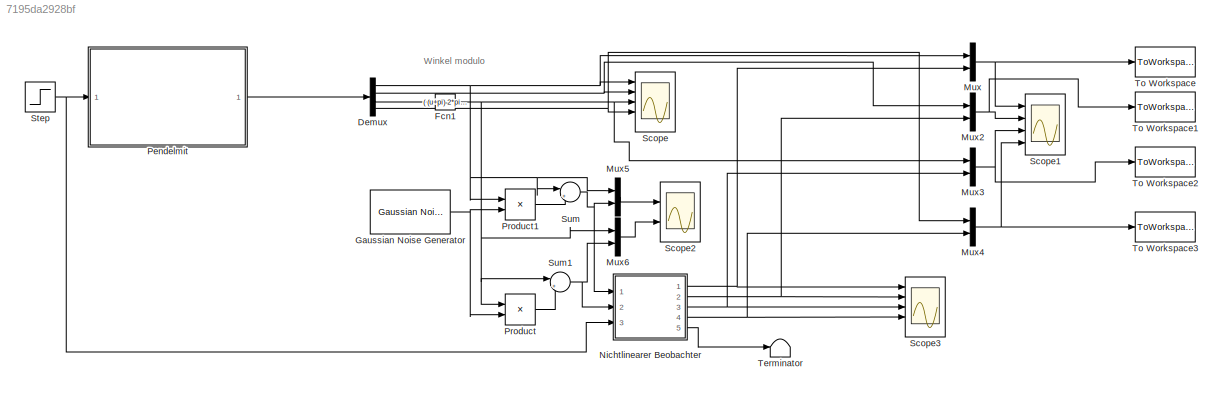
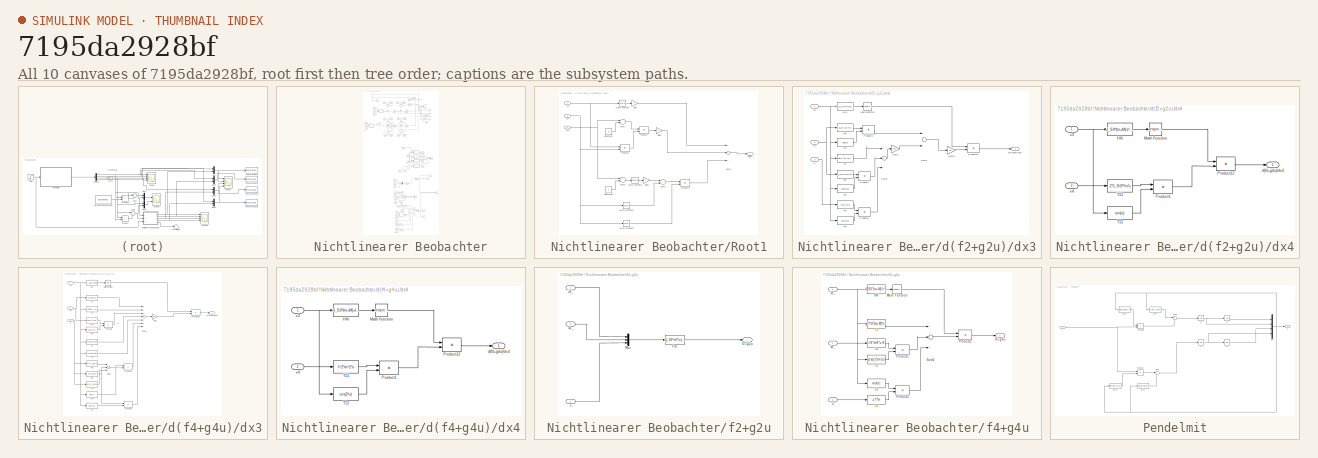
[diagram: thumbnail index - all 10 canvases of the model, root first then tree order]
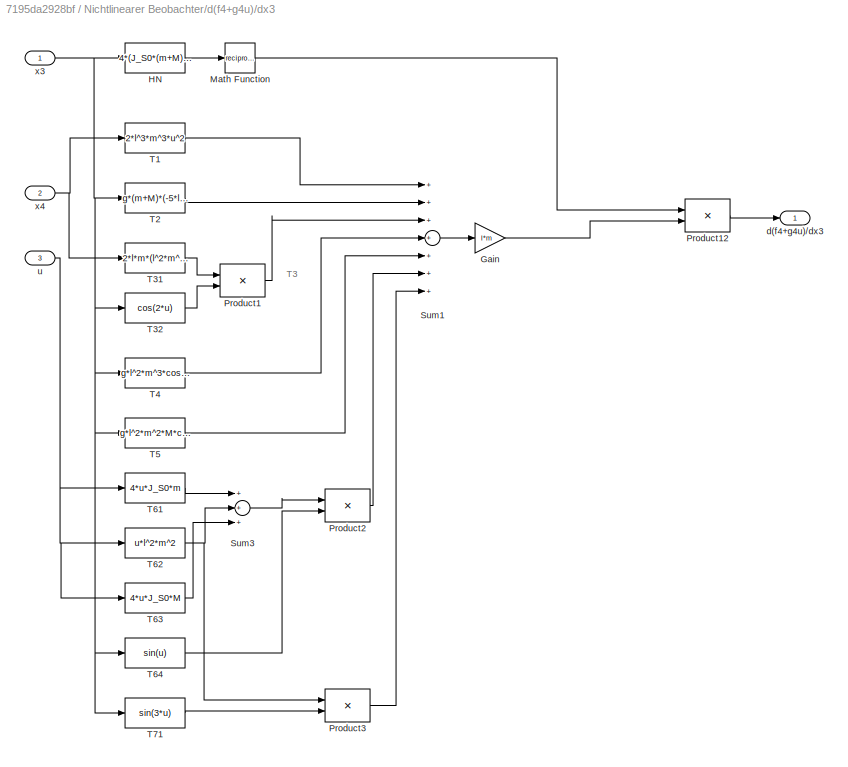
MODEL slx_7195da2928bf
KIND model
BLOCK [Demux] Demux
  Ports = [1, 4]
BLOCK [Fcn] Fcn1
  Expr = ( (u+pi)-2*pi*floor((u+pi)/(2*pi)) -pi)
BLOCK [Reference] Gaussian Noise Generator  REF=commnoisgen2/Gaussian Noise
Generator
  Ports = [0, 1]
  SourceBlock = commnoisgen2/Gaussian Noise\nGenerator
  SourceType = Gaussian Noise Generator
  Ts = 1e-3
  d = 0.0008
  frameBased = off
  m = 0
  orient = off
  outDataType = double
  s = 0
  sampPerFrame = 1
BLOCK [Mux] Mux
  DisplayOption = bar
  Inputs = 2
  Ports = [2, 1]
BLOCK [Mux] Mux2
  DisplayOption = bar
  Inputs = 2
  Ports = [2, 1]
BLOCK [Mux] Mux3
  DisplayOption = bar
  Inputs = 2
  Ports = [2, 1]
BLOCK [Mux] Mux4
  DisplayOption = bar
  Inputs = 2
  Ports = [2, 1]
BLOCK [Mux] Mux5
  DisplayOption = bar
  Inputs = 2
  Ports = [2, 1]
BLOCK [Mux] Mux6
  DisplayOption = bar
  Inputs = 2
  Ports = [2, 1]
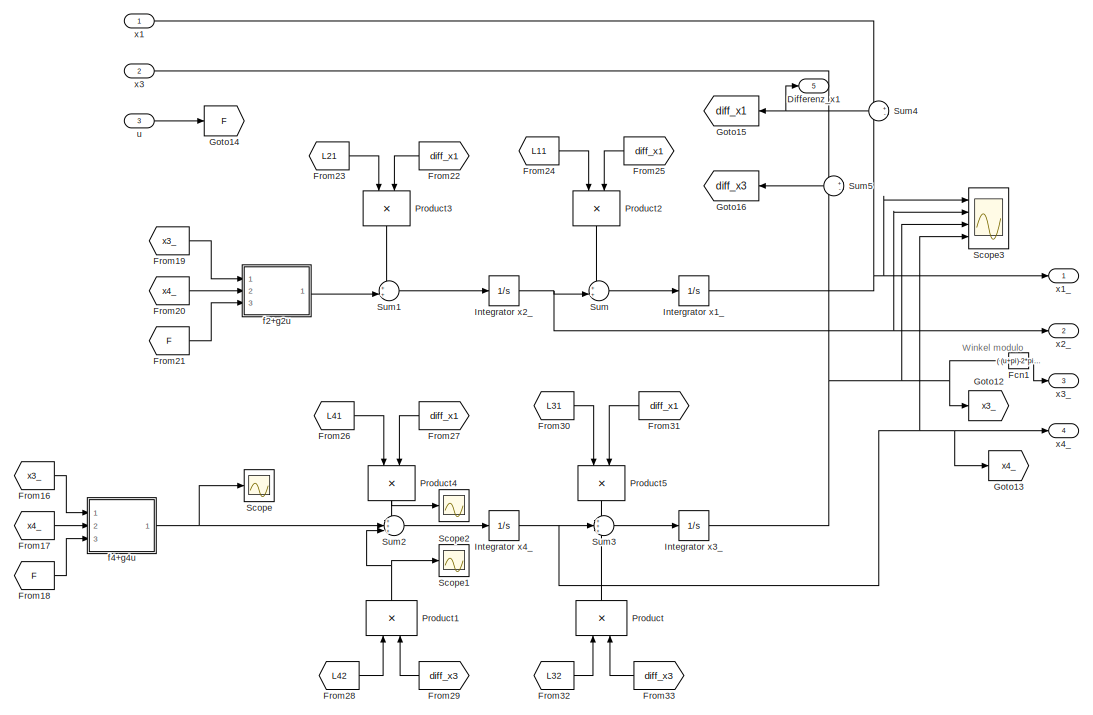
[diagram: Nichtlinearer Beobachter - part 1/2, full width, top band]
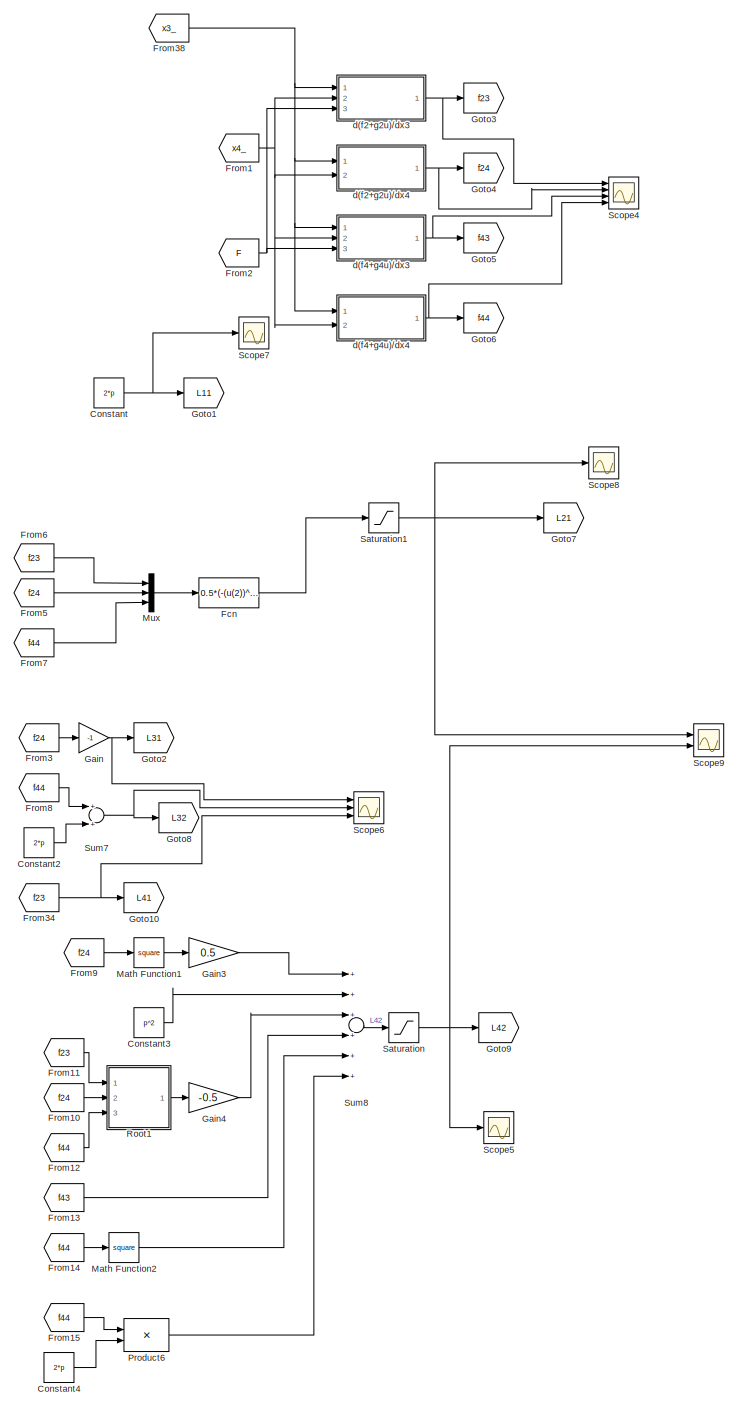
[diagram: Nichtlinearer Beobachter - part 2/2, bottom right region]
BLOCK [SubSystem] Nichtlinearer Beobachter
  FunctionWithSeparateData = off
  MaskHideContents = off
  MinAlgLoopOccurrences = off
  Opaque = off
  Ports = [3, 5]
  PropExecContextOutsideSubsystem = off
  RTWSystemCode = Auto
  RequestExecContextInheritance = off
BLOCK [Constant] Nichtlinearer Beobachter/Constant
  Value = 2*p
BLOCK [Constant] Nichtlinearer Beobachter/Constant2
  Value = 2*p
BLOCK [Constant] Nichtlinearer Beobachter/Constant3
  Value = p^2
BLOCK [Constant] Nichtlinearer Beobachter/Constant4
  Value = 2*p
BLOCK [Outport] Nichtlinearer Beobachter/Differenz_x1
  IconDisplay = Port number
  Port = 5
BLOCK [Fcn] Nichtlinearer Beobachter/Fcn
  Expr = 0.5*(-(u(2))^2+2*p^2+sqrt(4*u(1)^2+8*u(1)*u(2)*(u(3)+p)+u(2)^2*(u(2)^2+4*(u(3)+p)^2)))
BLOCK [Fcn] Nichtlinearer Beobachter/Fcn1
  Expr = ( (u+pi)-2*pi*floor((u+pi)/(2*pi)) -pi)
BLOCK [From] Nichtlinearer Beobachter/From1
  GotoTag = x4_
BLOCK [From] Nichtlinearer Beobachter/From10
  GotoTag = f24
BLOCK [From] Nichtlinearer Beobachter/From11
  GotoTag = f23
BLOCK [From] Nichtlinearer Beobachter/From12
  GotoTag = f44
BLOCK [From] Nichtlinearer Beobachter/From13
  GotoTag = f43
BLOCK [From] Nichtlinearer Beobachter/From14
  GotoTag = f44
BLOCK [From] Nichtlinearer Beobachter/From15
  GotoTag = f44
BLOCK [From] Nichtlinearer Beobachter/From16
  GotoTag = x3_
BLOCK [From] Nichtlinearer Beobachter/From17
  GotoTag = x4_
BLOCK [From] Nichtlinearer Beobachter/From18
  GotoTag = F
BLOCK [From] Nichtlinearer Beobachter/From19
  GotoTag = x3_
BLOCK [From] Nichtlinearer Beobachter/From2
  GotoTag = F
BLOCK [From] Nichtlinearer Beobachter/From20
  GotoTag = x4_
BLOCK [From] Nichtlinearer Beobachter/From21
  GotoTag = F
BLOCK [From] Nichtlinearer Beobachter/From22
  GotoTag = diff_x1
BLOCK [From] Nichtlinearer Beobachter/From23
  GotoTag = L21
BLOCK [From] Nichtlinearer Beobachter/From24
  GotoTag = L11
BLOCK [From] Nichtlinearer Beobachter/From25
  GotoTag = diff_x1
BLOCK [From] Nichtlinearer Beobachter/From26
  GotoTag = L41
BLOCK [From] Nichtlinearer Beobachter/From27
  GotoTag = diff_x1
BLOCK [From] Nichtlinearer Beobachter/From28
  GotoTag = L42
BLOCK [From] Nichtlinearer Beobachter/From29
  GotoTag = diff_x3
BLOCK [From] Nichtlinearer Beobachter/From3
  GotoTag = f24
BLOCK [From] Nichtlinearer Beobachter/From30
  GotoTag = L31
BLOCK [From] Nichtlinearer Beobachter/From31
  GotoTag = diff_x1
BLOCK [From] Nichtlinearer Beobachter/From32
  GotoTag = L32
BLOCK [From] Nichtlinearer Beobachter/From33
  GotoTag = diff_x3
BLOCK [From] Nichtlinearer Beobachter/From34
  GotoTag = f23
BLOCK [From] Nichtlinearer Beobachter/From38
  GotoTag = x3_
BLOCK [From] Nichtlinearer Beobachter/From5
  GotoTag = f24
BLOCK [From] Nichtlinearer Beobachter/From6
  GotoTag = f23
BLOCK [From] Nichtlinearer Beobachter/From7
  GotoTag = f44
BLOCK [From] Nichtlinearer Beobachter/From8
  GotoTag = f44
BLOCK [From] Nichtlinearer Beobachter/From9
  GotoTag = f24
BLOCK [Gain] Nichtlinearer Beobachter/Gain
  Gain = -1
  OutDataTypeStr = Inherit: Inherit via internal rule
  ParamDataTypeStr = Inherit: Inherit via internal rule
  SaturateOnIntegerOverflow = off
BLOCK [Gain] Nichtlinearer Beobachter/Gain3
  Gain = 0.5
  OutDataTypeStr = Inherit: Inherit via internal rule
  ParamDataTypeStr = Inherit: Inherit via internal rule
  SaturateOnIntegerOverflow = off
BLOCK [Gain] Nichtlinearer Beobachter/Gain4
  Gain = -0.5
  OutDataTypeStr = Inherit: Inherit via internal rule
  ParamDataTypeStr = Inherit: Inherit via internal rule
  SaturateOnIntegerOverflow = off
BLOCK [Goto] Nichtlinearer Beobachter/Goto1
  GotoTag = L11
BLOCK [Goto] Nichtlinearer Beobachter/Goto10
  GotoTag = L41
BLOCK [Goto] Nichtlinearer Beobachter/Goto12
  GotoTag = x3_
BLOCK [Goto] Nichtlinearer Beobachter/Goto13
  GotoTag = x4_
BLOCK [Goto] Nichtlinearer Beobachter/Goto14
  GotoTag = F
BLOCK [Goto] Nichtlinearer Beobachter/Goto15
  GotoTag = diff_x1
BLOCK [Goto] Nichtlinearer Beobachter/Goto16
  GotoTag = diff_x3
BLOCK [Goto] Nichtlinearer Beobachter/Goto2
  GotoTag = L31
BLOCK [Goto] Nichtlinearer Beobachter/Goto3
  GotoTag = f23
BLOCK [Goto] Nichtlinearer Beobachter/Goto4
  GotoTag = f24
BLOCK [Goto] Nichtlinearer Beobachter/Goto5
  GotoTag = f43
BLOCK [Goto] Nichtlinearer Beobachter/Goto6
  GotoTag = f44
BLOCK [Goto] Nichtlinearer Beobachter/Goto7
  GotoTag = L21
BLOCK [Goto] Nichtlinearer Beobachter/Goto8
  GotoTag = L32
BLOCK [Goto] Nichtlinearer Beobachter/Goto9
  GotoTag = L42
BLOCK [Integrator] Nichtlinearer Beobachter/Integrator x2_
  Ports = [1, 1]
BLOCK [Integrator] Nichtlinearer Beobachter/Integrator x3_
  InitialCondition = x3
  Ports = [1, 1]
BLOCK [Integrator] Nichtlinearer Beobachter/Integrator x4_
  Ports = [1, 1]
BLOCK [Integrator] Nichtlinearer Beobachter/Intergrator x1_
  Ports = [1, 1]
BLOCK [Math] Nichtlinearer Beobachter/Math Function1
  Operator = square
  Ports = [1, 1]
BLOCK [Math] Nichtlinearer Beobachter/Math Function2
  Operator = square
  Ports = [1, 1]
BLOCK [Mux] Nichtlinearer Beobachter/Mux
  DisplayOption = bar
  Inputs = 3
  Ports = [3, 1]
BLOCK [Product] Nichtlinearer Beobachter/Product
  Ports = [2, 1]
BLOCK [Product] Nichtlinearer Beobachter/Product1
  Ports = [2, 1]
BLOCK [Product] Nichtlinearer Beobachter/Product2
  Ports = [2, 1]
BLOCK [Product] Nichtlinearer Beobachter/Product3
  Ports = [2, 1]
BLOCK [Product] Nichtlinearer Beobachter/Product4
  Ports = [2, 1]
BLOCK [Product] Nichtlinearer Beobachter/Product5
  Ports = [2, 1]
BLOCK [Product] Nichtlinearer Beobachter/Product6
  Ports = [2, 1]
BLOCK [SubSystem] Nichtlinearer Beobachter/Root1
  FunctionWithSeparateData = off
  MaskHideContents = off
  MinAlgLoopOccurrences = off
  Opaque = off
  Ports = [3, 1]
  PropExecContextOutsideSubsystem = off
  RTWSystemCode = Auto
  RequestExecContextInheritance = off
BLOCK [Constant] Nichtlinearer Beobachter/Root1/Constant1
  Value = p
BLOCK [Constant] Nichtlinearer Beobachter/Root1/Constant2
  Value = p
BLOCK [Gain] Nichtlinearer Beobachter/Root1/Gain
  Gain = 4
  OutDataTypeStr = Inherit: Inherit via internal rule
  ParamDataTypeStr = Inherit: Inherit via internal rule
  SaturateOnIntegerOverflow = off
BLOCK [Gain] Nichtlinearer Beobachter/Root1/Gain1
  Gain = 4
  OutDataTypeStr = Inherit: Inherit via internal rule
  ParamDataTypeStr = Inherit: Inherit via internal rule
  SaturateOnIntegerOverflow = off
BLOCK [Gain] Nichtlinearer Beobachter/Root1/Gain2
  Gain = 8
  OutDataTypeStr = Inherit: Inherit via internal rule
  ParamDataTypeStr = Inherit: Inherit via internal rule
  SaturateOnIntegerOverflow = off
BLOCK [Math] Nichtlinearer Beobachter/Root1/Math Function
  Operator = square
  Ports = [1, 1]
BLOCK [Math] Nichtlinearer Beobachter/Root1/Math Function1
  Operator = square
  Ports = [1, 1]
BLOCK [Math] Nichtlinearer Beobachter/Root1/Math Function2
  Operator = square
  Ports = [1, 1]
BLOCK [Math] Nichtlinearer Beobachter/Root1/Math Function3
  Operator = square
  Ports = [1, 1]
BLOCK [Product] Nichtlinearer Beobachter/Root1/Product6
  Ports = [2, 1]
BLOCK [Product] Nichtlinearer Beobachter/Root1/Product7
  Ports = [2, 1]
BLOCK [Product] Nichtlinearer Beobachter/Root1/Product8
  Ports = [2, 1]
BLOCK [Outport] Nichtlinearer Beobachter/Root1/Root
  IconDisplay = Port number
BLOCK [Sum] Nichtlinearer Beobachter/Root1/Sum6
  Inputs = +++
  Ports = [3, 1]
BLOCK [Sum] Nichtlinearer Beobachter/Root1/Sum7
  Ports = [2, 1]
BLOCK [Sum] Nichtlinearer Beobachter/Root1/Sum8
  Ports = [2, 1]
BLOCK [Sum] Nichtlinearer Beobachter/Root1/Sum9
  Ports = [2, 1]
BLOCK [Inport] Nichtlinearer Beobachter/Root1/f23
  IconDisplay = Port number
BLOCK [Inport] Nichtlinearer Beobachter/Root1/f24
  IconDisplay = Port number
  Port = 2
BLOCK [Inport] Nichtlinearer Beobachter/Root1/f44
  IconDisplay = Port number
  Port = 3
BLOCK [Saturate] Nichtlinearer Beobachter/Saturation
  InputPortMap = u0
  LowerLimit = -5*10^4
  Ports = [1, 1]
  UpperLimit = 5*10^4
BLOCK [Saturate] Nichtlinearer Beobachter/Saturation1
  InputPortMap = u0
  LowerLimit = -5*10^4
  Ports = [1, 1]
  UpperLimit = 5*10^4
BLOCK [Scope] Nichtlinearer Beobachter/Scope
  DataFormat = StructureWithTime
  Floating = off
  NumInputPorts = 1
  Ports = [1]
  SampleTime = 0
  ShowLegends = off
BLOCK [Scope] Nichtlinearer Beobachter/Scope1
  DataFormat = StructureWithTime
  Floating = off
  NumInputPorts = 1
  Ports = [1]
  SampleTime = 0
  SaveName = ScopeData1
  ShowLegends = off
BLOCK [Scope] Nichtlinearer Beobachter/Scope2
  DataFormat = StructureWithTime
  Floating = off
  NumInputPorts = 1
  Ports = [1]
  SampleTime = 0
  SaveName = ScopeData2
  ShowLegends = off
BLOCK [Scope] Nichtlinearer Beobachter/Scope3
  DataFormat = StructureWithTime
  Floating = off
  LimitDataPoints = off
  MaxDataPoints = 500000
  NumInputPorts = 4
  Ports = [4]
  SampleTime = 0
  SaveName = simulation_data3
  SaveToWorkspace = on
  ShowLegends = off
  TimeRange = 25
  YMax = 0.5~2~4~200
  YMin = -0.5~-2~-4~-200
  ZoomMode = yonly
BLOCK [Scope] Nichtlinearer Beobachter/Scope4
  DataFormat = StructureWithTime
  Floating = off
  NumInputPorts = 4
  Ports = [4]
  SampleTime = 0
  SaveName = ScopeData3
  ShowLegends = off
  YMax = 5~5~5~5
  YMin = -5~-5~-5~-5
BLOCK [Scope] Nichtlinearer Beobachter/Scope5
  DataFormat = StructureWithTime
  Floating = off
  LimitDataPoints = off
  NumInputPorts = 1
  Ports = [1]
  SampleTime = 0
  SaveName = ScopeData4
  ShowLegends = off
BLOCK [Scope] Nichtlinearer Beobachter/Scope6
  DataFormat = StructureWithTime
  Floating = off
  NumInputPorts = 3
  Ports = [3]
  SampleTime = 0
  SaveName = ScopeData5
  ShowLegends = off
  YMax = 5~5~5
  YMin = -5~-5~-5
BLOCK [Scope] Nichtlinearer Beobachter/Scope7
  DataFormat = StructureWithTime
  Floating = off
  NumInputPorts = 1
  Ports = [1]
  SampleTime = 0
  SaveName = ScopeData6
  ShowLegends = off
BLOCK [Scope] Nichtlinearer Beobachter/Scope8
  DataFormat = StructureWithTime
  Floating = off
  LimitDataPoints = off
  NumInputPorts = 1
  Ports = [1]
  SampleTime = 0
  SaveName = ScopeData7
  ShowLegends = off
BLOCK [Scope] Nichtlinearer Beobachter/Scope9
  DataFormat = StructureWithTime
  Floating = off
  LimitDataPoints = off
  NumInputPorts = 2
  Ports = [2]
  SampleTime = 0
  SaveName = ScopeData8
  ShowLegends = off
  YMax = 5~5
  YMin = -5~-5
  ZoomMode = xonly
BLOCK [Sum] Nichtlinearer Beobachter/Sum
  IconShape = round
  Inputs = ++|
  Ports = [2, 1]
BLOCK [Sum] Nichtlinearer Beobachter/Sum1
  IconShape = round
  Inputs = ++|
  Ports = [2, 1]
BLOCK [Sum] Nichtlinearer Beobachter/Sum2
  IconShape = round
  Inputs = +++|
  Ports = [3, 1]
BLOCK [Sum] Nichtlinearer Beobachter/Sum3
  IconShape = round
  Inputs = +++
  Ports = [3, 1]
BLOCK [Sum] Nichtlinearer Beobachter/Sum4
  IconShape = round
  Inputs = +-
  Ports = [2, 1]
BLOCK [Sum] Nichtlinearer Beobachter/Sum5
  IconShape = round
  Inputs = +-
  Ports = [2, 1]
BLOCK [Sum] Nichtlinearer Beobachter/Sum7
  Ports = [2, 1]
BLOCK [Sum] Nichtlinearer Beobachter/Sum8
  Inputs = ++++++
  Ports = [6, 1]
BLOCK [SubSystem] Nichtlinearer Beobachter/d(f2+g2u)//dx3
  FunctionWithSeparateData = off
  MaskHideContents = off
  MinAlgLoopOccurrences = off
  Opaque = off
  Ports = [3, 1]
  PropExecContextOutsideSubsystem = off
  RTWSystemCode = Auto
  RequestExecContextInheritance = off
BLOCK [Gain] Nichtlinearer Beobachter/d(f2+g2u)//dx3/Gain1
  Gain = l*m
  OutDataTypeStr = Inherit: Inherit via internal rule
  ParamDataTypeStr = Inherit: Inherit via internal rule
  SaturateOnIntegerOverflow = off
BLOCK [Gain] Nichtlinearer Beobachter/d(f2+g2u)//dx3/Gain3
  Gain = l*m
  OutDataTypeStr = Inherit: Inherit via internal rule
  ParamDataTypeStr = Inherit: Inherit via internal rule
  SaturateOnIntegerOverflow = off
BLOCK [Fcn] Nichtlinearer Beobachter/d(f2+g2u)//dx3/HN1
  Expr = 4*(J_S0*(m+M)-l^2*m^2*cos(u)^2)^2
BLOCK [Math] Nichtlinearer Beobachter/d(f2+g2u)//dx3/Math Function
  Operator = reciprocal
  Ports = [1, 1]
BLOCK [Product] Nichtlinearer Beobachter/d(f2+g2u)//dx3/Product1
  Ports = [2, 1]
BLOCK [Product] Nichtlinearer Beobachter/d(f2+g2u)//dx3/Product12
  Ports = [2, 1]
BLOCK [Product] Nichtlinearer Beobachter/d(f2+g2u)//dx3/Product2
  Ports = [2, 1]
BLOCK [Product] Nichtlinearer Beobachter/d(f2+g2u)//dx3/Product4
  Ports = [2, 1]
BLOCK [Sum] Nichtlinearer Beobachter/d(f2+g2u)//dx3/Sum1
  Ports = [2, 1]
BLOCK [Sum] Nichtlinearer Beobachter/d(f2+g2u)//dx3/Sum2
  Inputs = +++
  Ports = [3, 1]
BLOCK [Fcn] Nichtlinearer Beobachter/d(f2+g2u)//dx3/T11
  Expr = J_S0*(-5*l^2*m^2+4*J_S0*(m+M))*u^2
BLOCK [Fcn] Nichtlinearer Beobachter/d(f2+g2u)//dx3/T12
  Expr = cos(u)
BLOCK [Fcn] Nichtlinearer Beobachter/d(f2+g2u)//dx3/T2
  Expr = 2*g*(l^2)*(m^2)*-2*g*(-l^2*m^2+2*J_S0*(m+M))*cos(2*u)
BLOCK [Fcn] Nichtlinearer Beobachter/d(f2+g2u)//dx3/T31
  Expr = J_S0*l*m*u^2
BLOCK [Fcn] Nichtlinearer Beobachter/d(f2+g2u)//dx3/T32
  Expr = cos(3*u)
BLOCK [Fcn] Nichtlinearer Beobachter/d(f2+g2u)//dx3/T41
  Expr = -4*u*J_S0
BLOCK [Fcn] Nichtlinearer Beobachter/d(f2+g2u)//dx3/T42
  Expr = sin(2*u)
BLOCK [Outport] Nichtlinearer Beobachter/d(f2+g2u)//dx3/d(f2+g2u)//dx3
  IconDisplay = Port number
BLOCK [Inport] Nichtlinearer Beobachter/d(f2+g2u)//dx3/u
  IconDisplay = Port number
  Port = 3
BLOCK [Inport] Nichtlinearer Beobachter/d(f2+g2u)//dx3/x3
  IconDisplay = Port number
BLOCK [Inport] Nichtlinearer Beobachter/d(f2+g2u)//dx3/x4
  IconDisplay = Port number
  Port = 2
BLOCK [SubSystem] Nichtlinearer Beobachter/d(f2+g2u)//dx4
  FunctionWithSeparateData = off
  MaskHideContents = off
  MinAlgLoopOccurrences = off
  Opaque = off
  Ports = [2, 1]
  PropExecContextOutsideSubsystem = off
  RTWSystemCode = Auto
  RequestExecContextInheritance = off
BLOCK [Fcn] Nichtlinearer Beobachter/d(f2+g2u)//dx4/HN
  Expr = J_S0*(m+M)-l^2*m^2*cos(u)^2
BLOCK [Math] Nichtlinearer Beobachter/d(f2+g2u)//dx4/Math Function
  Operator = reciprocal
  Ports = [1, 1]
BLOCK [Product] Nichtlinearer Beobachter/d(f2+g2u)//dx4/Product1
  Ports = [2, 1]
BLOCK [Product] Nichtlinearer Beobachter/d(f2+g2u)//dx4/Product12
  Ports = [2, 1]
BLOCK [Fcn] Nichtlinearer Beobachter/d(f2+g2u)//dx4/T11
  Expr = 2*J_S0*l*m*u
BLOCK [Fcn] Nichtlinearer Beobachter/d(f2+g2u)//dx4/T12
  Expr = sin(u)
BLOCK [Outport] Nichtlinearer Beobachter/d(f2+g2u)//dx4/d(f4+g4u)//dx4
  IconDisplay = Port number
BLOCK [Inport] Nichtlinearer Beobachter/d(f2+g2u)//dx4/x3
  IconDisplay = Port number
BLOCK [Inport] Nichtlinearer Beobachter/d(f2+g2u)//dx4/x4
  IconDisplay = Port number
  Port = 2
BLOCK [SubSystem] Nichtlinearer Beobachter/d(f4+g4u)//dx3
  FunctionWithSeparateData = off
  MaskHideContents = off
  MinAlgLoopOccurrences = off
  Opaque = off
  Ports = [3, 1]
  PropExecContextOutsideSubsystem = off
  RTWSystemCode = Auto
  RequestExecContextInheritance = off
BLOCK [Gain] Nichtlinearer Beobachter/d(f4+g4u)//dx3/Gain
  Gain = l*m
  OutDataTypeStr = Inherit: Inherit via internal rule
  ParamDataTypeStr = Inherit: Inherit via internal rule
  SaturateOnIntegerOverflow = off
BLOCK [Fcn] Nichtlinearer Beobachter/d(f4+g4u)//dx3/HN
  Expr = 4*(J_S0*(m+M)-l^2*m^2*cos(u)^2)^2
BLOCK [Math] Nichtlinearer Beobachter/d(f4+g4u)//dx3/Math Function
  Operator = reciprocal
  Ports = [1, 1]
BLOCK [Product] Nichtlinearer Beobachter/d(f4+g4u)//dx3/Product1
  Ports = [2, 1]
BLOCK [Product] Nichtlinearer Beobachter/d(f4+g4u)//dx3/Product12
  Ports = [2, 1]
BLOCK [Product] Nichtlinearer Beobachter/d(f4+g4u)//dx3/Product2
  Ports = [2, 1]
BLOCK [Product] Nichtlinearer Beobachter/d(f4+g4u)//dx3/Product3
  Ports = [2, 1]
BLOCK [Sum] Nichtlinearer Beobachter/d(f4+g4u)//dx3/Sum1
  Inputs = +++++++
  Ports = [7, 1]
BLOCK [Sum] Nichtlinearer Beobachter/d(f4+g4u)//dx3/Sum3
  Inputs = +++
  Ports = [3, 1]
BLOCK [Fcn] Nichtlinearer Beobachter/d(f4+g4u)//dx3/T1
  Expr = 2*l^3*m^3*u^2
BLOCK [Fcn] Nichtlinearer Beobachter/d(f4+g4u)//dx3/T2
  Expr = g*(m+M)*(-5*l^2*m^2+4*J_S0*(m+M))*cos(u)
BLOCK [Fcn] Nichtlinearer Beobachter/d(f4+g4u)//dx3/T31
  Expr = 2*l*m*(l^2*m^2-2*J_S0*(m+M))*(u^2)
BLOCK [Fcn] Nichtlinearer Beobachter/d(f4+g4u)//dx3/T32
  Expr = cos(2*u)
BLOCK [Fcn] Nichtlinearer Beobachter/d(f4+g4u)//dx3/T4
  Expr = g*l^2*m^3*cos(3*u)
BLOCK [Fcn] Nichtlinearer Beobachter/d(f4+g4u)//dx3/T5
  Expr = g*l^2*m^2*M*cos(3*u)
BLOCK [Fcn] Nichtlinearer Beobachter/d(f4+g4u)//dx3/T61
  Expr = 4*u*J_S0*m
BLOCK [Fcn] Nichtlinearer Beobachter/d(f4+g4u)//dx3/T62
  Expr = u*l^2*m^2
BLOCK [Fcn] Nichtlinearer Beobachter/d(f4+g4u)//dx3/T63
  Expr = 4*u*J_S0*M
BLOCK [Fcn] Nichtlinearer Beobachter/d(f4+g4u)//dx3/T64
  Expr = sin(u)
BLOCK [Fcn] Nichtlinearer Beobachter/d(f4+g4u)//dx3/T71
  Expr = sin(3*u)
BLOCK [Outport] Nichtlinearer Beobachter/d(f4+g4u)//dx3/d(f4+g4u)//dx3
  IconDisplay = Port number
BLOCK [Inport] Nichtlinearer Beobachter/d(f4+g4u)//dx3/u
  IconDisplay = Port number
  Port = 3
BLOCK [Inport] Nichtlinearer Beobachter/d(f4+g4u)//dx3/x3
  IconDisplay = Port number
BLOCK [Inport] Nichtlinearer Beobachter/d(f4+g4u)//dx3/x4
  IconDisplay = Port number
  Port = 2
BLOCK [SubSystem] Nichtlinearer Beobachter/d(f4+g4u)//dx4
  FunctionWithSeparateData = off
  MaskHideContents = off
  MinAlgLoopOccurrences = off
  Opaque = off
  Ports = [2, 1]
  PropExecContextOutsideSubsystem = off
  RTWSystemCode = Auto
  RequestExecContextInheritance = off
BLOCK [Fcn] Nichtlinearer Beobachter/d(f4+g4u)//dx4/HN
  Expr = -J_S0*(m+M)+l^2*m^2*cos(u)^2
BLOCK [Math] Nichtlinearer Beobachter/d(f4+g4u)//dx4/Math Function
  Operator = reciprocal
  Ports = [1, 1]
BLOCK [Product] Nichtlinearer Beobachter/d(f4+g4u)//dx4/Product1
  Ports = [2, 1]
BLOCK [Product] Nichtlinearer Beobachter/d(f4+g4u)//dx4/Product12
  Ports = [2, 1]
BLOCK [Fcn] Nichtlinearer Beobachter/d(f4+g4u)//dx4/T11
  Expr = l^2*m^2*u
BLOCK [Fcn] Nichtlinearer Beobachter/d(f4+g4u)//dx4/T12
  Expr = sin(2*u)
BLOCK [Outport] Nichtlinearer Beobachter/d(f4+g4u)//dx4/d(f4+g4u)//dx4
  IconDisplay = Port number
BLOCK [Inport] Nichtlinearer Beobachter/d(f4+g4u)//dx4/x3
  IconDisplay = Port number
BLOCK [Inport] Nichtlinearer Beobachter/d(f4+g4u)//dx4/x4
  IconDisplay = Port number
  Port = 2
BLOCK [SubSystem] Nichtlinearer Beobachter/f2+g2u
  FunctionWithSeparateData = off
  MaskHideContents = off
  MinAlgLoopOccurrences = off
  Opaque = off
  Ports = [3, 1]
  PropExecContextOutsideSubsystem = off
  RTWSystemCode = Auto
  RequestExecContextInheritance = off
BLOCK [Fcn] Nichtlinearer Beobachter/f2+g2u/Fcn
  Expr = (J_S0*m*l*u(2)^2*sin(u(1)))/(((M + m)*J_S0 - m^2*l^2 *cos(u(1))^2)) - (m^2*l^2*g*cos(u(1))*sin(u(1)))/((M + m)*J_S0 - m^2*l^2*cos(u(1))^2) + \n J_S0/((M + m)*J_S0 - m^2*l^2*cos(u(1))^2)*u(3)
BLOCK [Mux] Nichtlinearer Beobachter/f2+g2u/Mux
  DisplayOption = bar
  Inputs = 3
  Ports = [3, 1]
BLOCK [Outport] Nichtlinearer Beobachter/f2+g2u/f2+g2u
  IconDisplay = Port number
BLOCK [Inport] Nichtlinearer Beobachter/f2+g2u/u
  IconDisplay = Port number
  Port = 3
BLOCK [Inport] Nichtlinearer Beobachter/f2+g2u/x3_
  IconDisplay = Port number
BLOCK [Inport] Nichtlinearer Beobachter/f2+g2u/x4_
  IconDisplay = Port number
  Port = 2
BLOCK [SubSystem] Nichtlinearer Beobachter/f4+g4u
  FunctionWithSeparateData = off
  MaskHideContents = off
  MinAlgLoopOccurrences = off
  Opaque = off
  Ports = [3, 1]
  PropExecContextOutsideSubsystem = off
  RTWSystemCode = Auto
  RequestExecContextInheritance = off
BLOCK [Fcn] Nichtlinearer Beobachter/f4+g4u/HN
  Expr = J_S0*(m+M)-l^2*m^2*cos(u)^2
BLOCK [Math] Nichtlinearer Beobachter/f4+g4u/Math Function
  Operator = reciprocal
  Ports = [1, 1]
BLOCK [Product] Nichtlinearer Beobachter/f4+g4u/Product1
  Ports = [2, 1]
BLOCK [Product] Nichtlinearer Beobachter/f4+g4u/Product2
  Ports = [2, 1]
BLOCK [Product] Nichtlinearer Beobachter/f4+g4u/Product3
  Ports = [2, 1]
BLOCK [Sum] Nichtlinearer Beobachter/f4+g4u/Sum2
  Inputs = +++
  Ports = [3, 1]
BLOCK [Fcn] Nichtlinearer Beobachter/f4+g4u/T1
  Expr = g*l*m*(m+M)*sin(u)
BLOCK [Fcn] Nichtlinearer Beobachter/f4+g4u/T2
  Expr = -u*l*m
BLOCK [Fcn] Nichtlinearer Beobachter/f4+g4u/T3
  Expr = cos(u)
BLOCK [Fcn] Nichtlinearer Beobachter/f4+g4u/T4
  Expr = -l^2*m^2*u^2
BLOCK [Fcn] Nichtlinearer Beobachter/f4+g4u/T5
  Expr = cos(u)*sin(u)
BLOCK [Outport] Nichtlinearer Beobachter/f4+g4u/f4+g4u
  IconDisplay = Port number
BLOCK [Inport] Nichtlinearer Beobachter/f4+g4u/u
  IconDisplay = Port number
  Port = 3
BLOCK [Inport] Nichtlinearer Beobachter/f4+g4u/x3_
  IconDisplay = Port number
BLOCK [Inport] Nichtlinearer Beobachter/f4+g4u/x4_
  IconDisplay = Port number
  Port = 2
BLOCK [Inport] Nichtlinearer Beobachter/u
  IconDisplay = Port number
  Port = 3
BLOCK [Inport] Nichtlinearer Beobachter/x1
  IconDisplay = Port number
BLOCK [Outport] Nichtlinearer Beobachter/x1_
  IconDisplay = Port number
BLOCK [Outport] Nichtlinearer Beobachter/x2_
  IconDisplay = Port number
  Port = 2
BLOCK [Inport] Nichtlinearer Beobachter/x3
  IconDisplay = Port number
  Port = 2
BLOCK [Outport] Nichtlinearer Beobachter/x3_
  IconDisplay = Port number
  Port = 3
BLOCK [Outport] Nichtlinearer Beobachter/x4_
  IconDisplay = Port number
  Port = 4
BLOCK [SubSystem] Pendelmit
  FunctionWithSeparateData = off
  MaskHideContents = off
  MinAlgLoopOccurrences = off
  Opaque = off
  Ports = [1, 1]
  PropExecContextOutsideSubsystem = off
  RTWSystemCode = Auto
  RequestExecContextInheritance = off
BLOCK [Mux] Pendelmit/Mux
  DisplayOption = bar
  Ports = [4, 1]
BLOCK [Product] Pendelmit/Product
  InputSameDT = off
  OutDataTypeStr = Inherit: Inherit via internal rule
  Ports = [2, 1]
  SaturateOnIntegerOverflow = off
BLOCK [Product] Pendelmit/Product1
  InputSameDT = off
  OutDataTypeStr = Inherit: Inherit via internal rule
  Ports = [2, 1]
  SaturateOnIntegerOverflow = off
BLOCK [Sum] Pendelmit/Sum
  IconShape = round
  InputSameDT = off
  Inputs = |++
  OutDataTypeStr = Inherit: Inherit via internal rule
  Ports = [2, 1]
  SaturateOnIntegerOverflow = off
BLOCK [Sum] Pendelmit/Sum1
  IconShape = round
  InputSameDT = off
  Inputs = |++
  OutDataTypeStr = Inherit: Inherit via internal rule
  Ports = [2, 1]
  SaturateOnIntegerOverflow = off
BLOCK [Fcn] Pendelmit/f2(x)
  Expr = (-(m*l)^2*g*cos(u(3))*sin(u(3))+J_S0*m*l*sin(u(3))*u(4)^2)/((M+m)*J_S0-(m*l*cos(u(3)))^2)
BLOCK [Fcn] Pendelmit/f4(x)
  Expr = ((M+m)*m*l*g*sin(u(3))-(m*l*u(4))^2*cos(u(3))*sin(u(3)))/((M+m)*J_S0-(m*l*cos(u(3)))^2)
BLOCK [Fcn] Pendelmit/g2(x)
  Expr = J_S0/((M+m)*J_S0-(m*l*cos(u(3)))^2)
BLOCK [Fcn] Pendelmit/g4(x)
  Expr = -m*l*cos(u(3))/((M+m)*J_S0-(m*l*cos(u(3)))^2)
BLOCK [Inport] Pendelmit/u
  IconDisplay = Port number
BLOCK [Outport] Pendelmit/x
  IconDisplay = Port number
BLOCK [Integrator] Pendelmit/x1
  InitialCondition = x1
  Ports = [1, 1]
BLOCK [Integrator] Pendelmit/x2
  InitialCondition = x2
  Ports = [1, 1]
BLOCK [Integrator] Pendelmit/x3
  InitialCondition = x3
  Ports = [1, 1]
BLOCK [Integrator] Pendelmit/x4
  InitialCondition = x4
  Ports = [1, 1]
BLOCK [Product] Product
  InputSameDT = off
  OutDataTypeStr = Inherit: Inherit via internal rule
  Ports = [2, 1]
  SaturateOnIntegerOverflow = off
BLOCK [Product] Product1
  InputSameDT = off
  OutDataTypeStr = Inherit: Inherit via internal rule
  Ports = [2, 1]
  SaturateOnIntegerOverflow = off
BLOCK [Scope] Scope
  DataFormat = StructureWithTime
  Floating = off
  LimitDataPoints = off
  MaxDataPoints = 500000
  NumInputPorts = 5
  Ports = [5]
  SampleTime = 0
  SaveName = simulation_data
  SaveToWorkspace = on
  ShowLegends = off
  TimeRange = 100
  YMax = 1~1~5~40~200
  YMin = -0.5~-2~-5~-20~-200
  ZoomMode = yonly
BLOCK [Scope] Scope1
  DataFormat = StructureWithTime
  Floating = off
  LimitDataPoints = off
  MaxDataPoints = 500000
  NumInputPorts = 4
  Ports = [4]
  SampleTime = 0
  SaveName = simulation_data2
  SaveToWorkspace = on
  ShowLegends = off
  TimeRange = 3.23208722741433
  YMax = 0.003~0.025~0.0025~0.015
  YMin = -0.0035~-0.02~-0.0025~-0.0125
BLOCK [Scope] Scope2
  DataFormat = StructureWithTime
  Floating = off
  LimitDataPoints = off
  MaxDataPoints = 500000
  NumInputPorts = 2
  Ports = [2]
  SampleTime = 0
  SaveName = simulation_data4
  SaveToWorkspace = on
  ShowLegends = off
  TimeRange = 100
  YMax = 1~5
  YMin = -0.5~-5
  ZoomMode = xonly
BLOCK [Scope] Scope3
  DataFormat = StructureWithTime
  Floating = off
  LimitDataPoints = off
  MaxDataPoints = 500000
  NumInputPorts = 5
  Ports = [5]
  SampleTime = 0
  SaveName = simulation_data1
  SaveToWorkspace = on
  ShowLegends = off
  TimeRange = 25
  YMax = 0.5~2~4~200~1
  YMin = -0.5~-2~-4~-200~-1
  ZoomMode = xonly
BLOCK [Step] Step
  SampleTime = 0
BLOCK [Sum] Sum
  IconShape = round
  InputSameDT = off
  Inputs = |++
  OutDataTypeStr = Inherit: Inherit via internal rule
  Ports = [2, 1]
  SaturateOnIntegerOverflow = off
BLOCK [Sum] Sum1
  IconShape = round
  InputSameDT = off
  Inputs = |++
  OutDataTypeStr = Inherit: Inherit via internal rule
  Ports = [2, 1]
  SaturateOnIntegerOverflow = off
BLOCK [Terminator] Terminator
BLOCK [ToWorkspace] To Workspace
  MaxDataPoints = inf
  Ports = [1]
  SampleTime = -1
  SaveFormat = Timeseries
  VariableName = Position
BLOCK [ToWorkspace] To Workspace1
  MaxDataPoints = inf
  Ports = [1]
  SampleTime = -1
  SaveFormat = Timeseries
  VariableName = Geschwindigkeit
BLOCK [ToWorkspace] To Workspace2
  MaxDataPoints = inf
  Ports = [1]
  SampleTime = -1
  SaveFormat = Timeseries
  VariableName = Winkel
BLOCK [ToWorkspace] To Workspace3
  MaxDataPoints = inf
  Ports = [1]
  SampleTime = -1
  SaveFormat = Timeseries
  VariableName = Winkelgeschw
ANNOTATION (root): Winkel modulo
ANNOTATION Nichtlinearer Beobachter: Winkel modulo
ANNOTATION Nichtlinearer Beobachter/d(f4+g4u)//dx3: T3
NET Demux:1 -> Mux5:1, Mux:1, Product1:1, Scope:1, Sum:1
NET Demux:2 -> Mux2:1, Scope:2
LINE Demux:3 -> Fcn1:1
NET Demux:4 -> Mux4:1, Scope:4
NET Fcn1:1 -> Mux3:1, Mux6:1, Product:1, Scope:3, Sum1:1
NET Gaussian Noise Generator:1 -> Product1:2, Product:2
NET Mux2:1 -> Scope1:2, To Workspace1:1
NET Mux3:1 -> Scope1:3, To Workspace2:1
NET Mux4:1 -> Scope1:4, To Workspace3:1
LINE Mux5:1 -> Scope2:1
LINE Mux6:1 -> Scope2:2
NET Mux:1 -> Scope1:1, To Workspace:1
LINE Nichtlinearer Beobachter/Constant2:1 -> Nichtlinearer Beobachter/Sum7:2
LINE Nichtlinearer Beobachter/Constant3:1 -> Nichtlinearer Beobachter/Sum8:2
LINE Nichtlinearer Beobachter/Constant4:1 -> Nichtlinearer Beobachter/Product6:2
NET Nichtlinearer Beobachter/Constant:1 -> Nichtlinearer Beobachter/Goto1:1, Nichtlinearer Beobachter/Scope7:1
LINE Nichtlinearer Beobachter/Fcn1:1 -> Nichtlinearer Beobachter/x3_:1
LINE Nichtlinearer Beobachter/Fcn:1 -> Nichtlinearer Beobachter/Saturation1:1
LINE Nichtlinearer Beobachter/From10:1 -> Nichtlinearer Beobachter/Root1:2
LINE Nichtlinearer Beobachter/From11:1 -> Nichtlinearer Beobachter/Root1:1
LINE Nichtlinearer Beobachter/From12:1 -> Nichtlinearer Beobachter/Root1:3
LINE Nichtlinearer Beobachter/From13:1 -> Nichtlinearer Beobachter/Sum8:4
LINE Nichtlinearer Beobachter/From14:1 -> Nichtlinearer Beobachter/Math Function2:1
LINE Nichtlinearer Beobachter/From15:1 -> Nichtlinearer Beobachter/Product6:1
LINE Nichtlinearer Beobachter/From16:1 -> Nichtlinearer Beobachter/f4+g4u:1
LINE Nichtlinearer Beobachter/From17:1 -> Nichtlinearer Beobachter/f4+g4u:2
LINE Nichtlinearer Beobachter/From18:1 -> Nichtlinearer Beobachter/f4+g4u:3
LINE Nichtlinearer Beobachter/From19:1 -> Nichtlinearer Beobachter/f2+g2u:1
NET Nichtlinearer Beobachter/From1:1 -> Nichtlinearer Beobachter/d(f2+g2u)//dx3:2, Nichtlinearer Beobachter/d(f2+g2u)//dx4:2, Nichtlinearer Beobachter/d(f4+g4u)//dx3:2, Nichtlinearer Beobachter/d(f4+g4u)//dx4:2
LINE Nichtlinearer Beobachter/From20:1 -> Nichtlinearer Beobachter/f2+g2u:2
LINE Nichtlinearer Beobachter/From21:1 -> Nichtlinearer Beobachter/f2+g2u:3
LINE Nichtlinearer Beobachter/From22:1 -> Nichtlinearer Beobachter/Product3:2
LINE Nichtlinearer Beobachter/From23:1 -> Nichtlinearer Beobachter/Product3:1
LINE Nichtlinearer Beobachter/From24:1 -> Nichtlinearer Beobachter/Product2:1
LINE Nichtlinearer Beobachter/From25:1 -> Nichtlinearer Beobachter/Product2:2
LINE Nichtlinearer Beobachter/From26:1 -> Nichtlinearer Beobachter/Product4:1
LINE Nichtlinearer Beobachter/From27:1 -> Nichtlinearer Beobachter/Product4:2
LINE Nichtlinearer Beobachter/From28:1 -> Nichtlinearer Beobachter/Product1:1
LINE Nichtlinearer Beobachter/From29:1 -> Nichtlinearer Beobachter/Product1:2
NET Nichtlinearer Beobachter/From2:1 -> Nichtlinearer Beobachter/d(f2+g2u)//dx3:3, Nichtlinearer Beobachter/d(f4+g4u)//dx3:3
LINE Nichtlinearer Beobachter/From30:1 -> Nichtlinearer Beobachter/Product5:1
LINE Nichtlinearer Beobachter/From31:1 -> Nichtlinearer Beobachter/Product5:2
LINE Nichtlinearer Beobachter/From32:1 -> Nichtlinearer Beobachter/Product:1
LINE Nichtlinearer Beobachter/From33:1 -> Nichtlinearer Beobachter/Product:2
NET Nichtlinearer Beobachter/From34:1 -> Nichtlinearer Beobachter/Goto10:1, Nichtlinearer Beobachter/Scope6:3
NET Nichtlinearer Beobachter/From38:1 -> Nichtlinearer Beobachter/d(f2+g2u)//dx3:1, Nichtlinearer Beobachter/d(f2+g2u)//dx4:1, Nichtlinearer Beobachter/d(f4+g4u)//dx3:1, Nichtlinearer Beobachter/d(f4+g4u)//dx4:1
LINE Nichtlinearer Beobachter/From3:1 -> Nichtlinearer Beobachter/Gain:1
LINE Nichtlinearer Beobachter/From5:1 -> Nichtlinearer Beobachter/Mux:2
LINE Nichtlinearer Beobachter/From6:1 -> Nichtlinearer Beobachter/Mux:1
LINE Nichtlinearer Beobachter/From7:1 -> Nichtlinearer Beobachter/Mux:3
LINE Nichtlinearer Beobachter/From8:1 -> Nichtlinearer Beobachter/Sum7:1
LINE Nichtlinearer Beobachter/From9:1 -> Nichtlinearer Beobachter/Math Function1:1
LINE Nichtlinearer Beobachter/Gain3:1 -> Nichtlinearer Beobachter/Sum8:1
LINE Nichtlinearer Beobachter/Gain4:1 -> Nichtlinearer Beobachter/Sum8:3
NET Nichtlinearer Beobachter/Gain:1 -> Nichtlinearer Beobachter/Goto2:1, Nichtlinearer Beobachter/Scope6:1
NET Nichtlinearer Beobachter/Integrator x2_:1 -> Nichtlinearer Beobachter/Scope3:2, Nichtlinearer Beobachter/Sum:2, Nichtlinearer Beobachter/x2_:1
NET Nichtlinearer Beobachter/Integrator x3_:1 -> Nichtlinearer Beobachter/Fcn1:1, Nichtlinearer Beobachter/Goto12:1, Nichtlinearer Beobachter/Scope3:3, Nichtlinearer Beobachter/Sum5:2
NET Nichtlinearer Beobachter/Integrator x4_:1 -> Nichtlinearer Beobachter/Goto13:1, Nichtlinearer Beobachter/Scope3:4, Nichtlinearer Beobachter/Sum3:2, Nichtlinearer Beobachter/x4_:1
NET Nichtlinearer Beobachter/Intergrator x1_:1 -> Nichtlinearer Beobachter/Scope3:1, Nichtlinearer Beobachter/Sum4:2, Nichtlinearer Beobachter/x1_:1
LINE Nichtlinearer Beobachter/Math Function1:1 -> Nichtlinearer Beobachter/Gain3:1
LINE Nichtlinearer Beobachter/Math Function2:1 -> Nichtlinearer Beobachter/Sum8:5
LINE Nichtlinearer Beobachter/Mux:1 -> Nichtlinearer Beobachter/Fcn:1
NET Nichtlinearer Beobachter/Product1:1 -> Nichtlinearer Beobachter/Scope1:1, Nichtlinearer Beobachter/Sum2:3
LINE Nichtlinearer Beobachter/Product2:1 -> Nichtlinearer Beobachter/Sum:1
LINE Nichtlinearer Beobachter/Product3:1 -> Nichtlinearer Beobachter/Sum1:1
NET Nichtlinearer Beobachter/Product4:1 -> Nichtlinearer Beobachter/Scope2:1, Nichtlinearer Beobachter/Sum2:1
LINE Nichtlinearer Beobachter/Product5:1 -> Nichtlinearer Beobachter/Sum3:1
LINE Nichtlinearer Beobachter/Product6:1 -> Nichtlinearer Beobachter/Sum8:6
LINE Nichtlinearer Beobachter/Product:1 -> Nichtlinearer Beobachter/Sum3:3
LINE Nichtlinearer Beobachter/Root1/Constant1:1 -> Nichtlinearer Beobachter/Root1/Sum7:2
LINE Nichtlinearer Beobachter/Root1/Constant2:1 -> Nichtlinearer Beobachter/Root1/Sum8:2
LINE Nichtlinearer Beobachter/Root1/Gain1:1 -> Nichtlinearer Beobachter/Root1/Sum9:1
LINE Nichtlinearer Beobachter/Root1/Gain2:1 -> Nichtlinearer Beobachter/Root1/Sum6:2
LINE Nichtlinearer Beobachter/Root1/Gain:1 -> Nichtlinearer Beobachter/Root1/Sum6:1
LINE Nichtlinearer Beobachter/Root1/Math Function1:1 -> Nichtlinearer Beobachter/Root1/Gain1:1
LINE Nichtlinearer Beobachter/Root1/Math Function2:1 -> Nichtlinearer Beobachter/Root1/Sum9:2
LINE Nichtlinearer Beobachter/Root1/Math Function3:1 -> Nichtlinearer Beobachter/Root1/Product8:2
LINE Nichtlinearer Beobachter/Root1/Math Function:1 -> Nichtlinearer Beobachter/Root1/Gain:1
LINE Nichtlinearer Beobachter/Root1/Product6:1 -> Nichtlinearer Beobachter/Root1/Product7:2
LINE Nichtlinearer Beobachter/Root1/Product7:1 -> Nichtlinearer Beobachter/Root1/Gain2:1
LINE Nichtlinearer Beobachter/Root1/Product8:1 -> Nichtlinearer Beobachter/Root1/Sum6:3
LINE Nichtlinearer Beobachter/Root1/Sum6:1 -> Nichtlinearer Beobachter/Root1/Root:1
LINE Nichtlinearer Beobachter/Root1/Sum7:1 -> Nichtlinearer Beobachter/Root1/Product7:1
LINE Nichtlinearer Beobachter/Root1/Sum8:1 -> Nichtlinearer Beobachter/Root1/Math Function1:1
LINE Nichtlinearer Beobachter/Root1/Sum9:1 -> Nichtlinearer Beobachter/Root1/Product8:1
NET Nichtlinearer Beobachter/Root1/f23:1 -> Nichtlinearer Beobachter/Root1/Math Function:1, Nichtlinearer Beobachter/Root1/Product6:1
NET Nichtlinearer Beobachter/Root1/f24:1 -> Nichtlinearer Beobachter/Root1/Math Function2:1, Nichtlinearer Beobachter/Root1/Math Function3:1, Nichtlinearer Beobachter/Root1/Product6:2
NET Nichtlinearer Beobachter/Root1/f44:1 -> Nichtlinearer Beobachter/Root1/Sum7:1, Nichtlinearer Beobachter/Root1/Sum8:1
LINE Nichtlinearer Beobachter/Root1:1 -> Nichtlinearer Beobachter/Gain4:1
NET Nichtlinearer Beobachter/Saturation1:1 -> Nichtlinearer Beobachter/Goto7:1, Nichtlinearer Beobachter/Scope8:1, Nichtlinearer Beobachter/Scope9:1
NET Nichtlinearer Beobachter/Saturation:1 -> Nichtlinearer Beobachter/Goto9:1, Nichtlinearer Beobachter/Scope5:1, Nichtlinearer Beobachter/Scope9:2
LINE Nichtlinearer Beobachter/Sum1:1 -> Nichtlinearer Beobachter/Integrator x2_:1
LINE Nichtlinearer Beobachter/Sum2:1 -> Nichtlinearer Beobachter/Integrator x4_:1
LINE Nichtlinearer Beobachter/Sum3:1 -> Nichtlinearer Beobachter/Integrator x3_:1
NET Nichtlinearer Beobachter/Sum4:1 -> Nichtlinearer Beobachter/Differenz_x1:1, Nichtlinearer Beobachter/Goto15:1
LINE Nichtlinearer Beobachter/Sum5:1 -> Nichtlinearer Beobachter/Goto16:1
NET Nichtlinearer Beobachter/Sum7:1 -> Nichtlinearer Beobachter/Goto8:1, Nichtlinearer Beobachter/Scope6:2
LINE Nichtlinearer Beobachter/Sum8:1 -> Nichtlinearer Beobachter/Saturation:1
LINE Nichtlinearer Beobachter/Sum:1 -> Nichtlinearer Beobachter/Intergrator x1_:1
LINE Nichtlinearer Beobachter/d(f2+g2u)//dx3/Gain1:1 -> Nichtlinearer Beobachter/d(f2+g2u)//dx3/Sum1:2
LINE Nichtlinearer Beobachter/d(f2+g2u)//dx3/Gain3:1 -> Nichtlinearer Beobachter/d(f2+g2u)//dx3/Product12:2
LINE Nichtlinearer Beobachter/d(f2+g2u)//dx3/HN1:1 -> Nichtlinearer Beobachter/d(f2+g2u)//dx3/Math Function:1
LINE Nichtlinearer Beobachter/d(f2+g2u)//dx3/Math Function:1 -> Nichtlinearer Beobachter/d(f2+g2u)//dx3/Product12:1
LINE Nichtlinearer Beobachter/d(f2+g2u)//dx3/Product12:1 -> Nichtlinearer Beobachter/d(f2+g2u)//dx3/d(f2+g2u)//dx3:1
LINE Nichtlinearer Beobachter/d(f2+g2u)//dx3/Product1:1 -> Nichtlinearer Beobachter/d(f2+g2u)//dx3/Sum1:1
LINE Nichtlinearer Beobachter/d(f2+g2u)//dx3/Product2:1 -> Nichtlinearer Beobachter/d(f2+g2u)//dx3/Sum2:3
LINE Nichtlinearer Beobachter/d(f2+g2u)//dx3/Product4:1 -> Nichtlinearer Beobachter/d(f2+g2u)//dx3/Sum2:2
LINE Nichtlinearer Beobachter/d(f2+g2u)//dx3/Sum1:1 -> Nichtlinearer Beobachter/d(f2+g2u)//dx3/Gain3:1
LINE Nichtlinearer Beobachter/d(f2+g2u)//dx3/Sum2:1 -> Nichtlinearer Beobachter/d(f2+g2u)//dx3/Gain1:1
LINE Nichtlinearer Beobachter/d(f2+g2u)//dx3/T11:1 -> Nichtlinearer Beobachter/d(f2+g2u)//dx3/Product1:1
LINE Nichtlinearer Beobachter/d(f2+g2u)//dx3/T12:1 -> Nichtlinearer Beobachter/d(f2+g2u)//dx3/Product1:2
LINE Nichtlinearer Beobachter/d(f2+g2u)//dx3/T2:1 -> Nichtlinearer Beobachter/d(f2+g2u)//dx3/Sum2:1
LINE Nichtlinearer Beobachter/d(f2+g2u)//dx3/T31:1 -> Nichtlinearer Beobachter/d(f2+g2u)//dx3/Product4:1
LINE Nichtlinearer Beobachter/d(f2+g2u)//dx3/T32:1 -> Nichtlinearer Beobachter/d(f2+g2u)//dx3/Product4:2
LINE Nichtlinearer Beobachter/d(f2+g2u)//dx3/T41:1 -> Nichtlinearer Beobachter/d(f2+g2u)//dx3/Product2:1
LINE Nichtlinearer Beobachter/d(f2+g2u)//dx3/T42:1 -> Nichtlinearer Beobachter/d(f2+g2u)//dx3/Product2:2
LINE Nichtlinearer Beobachter/d(f2+g2u)//dx3/u:1 -> Nichtlinearer Beobachter/d(f2+g2u)//dx3/T41:1
NET Nichtlinearer Beobachter/d(f2+g2u)//dx3/x3:1 -> Nichtlinearer Beobachter/d(f2+g2u)//dx3/HN1:1, Nichtlinearer Beobachter/d(f2+g2u)//dx3/T12:1, Nichtlinearer Beobachter/d(f2+g2u)//dx3/T2:1, Nichtlinearer Beobachter/d(f2+g2u)//dx3/T32:1, Nichtlinearer Beobachter/d(f2+g2u)//dx3/T42:1
NET Nichtlinearer Beobachter/d(f2+g2u)//dx3/x4:1 -> Nichtlinearer Beobachter/d(f2+g2u)//dx3/T11:1, Nichtlinearer Beobachter/d(f2+g2u)//dx3/T31:1
NET Nichtlinearer Beobachter/d(f2+g2u)//dx3:1 -> Nichtlinearer Beobachter/Goto3:1, Nichtlinearer Beobachter/Scope4:1
LINE Nichtlinearer Beobachter/d(f2+g2u)//dx4/HN:1 -> Nichtlinearer Beobachter/d(f2+g2u)//dx4/Math Function:1
LINE Nichtlinearer Beobachter/d(f2+g2u)//dx4/Math Function:1 -> Nichtlinearer Beobachter/d(f2+g2u)//dx4/Product12:1
LINE Nichtlinearer Beobachter/d(f2+g2u)//dx4/Product12:1 -> Nichtlinearer Beobachter/d(f2+g2u)//dx4/d(f4+g4u)//dx4:1
LINE Nichtlinearer Beobachter/d(f2+g2u)//dx4/Product1:1 -> Nichtlinearer Beobachter/d(f2+g2u)//dx4/Product12:2
LINE Nichtlinearer Beobachter/d(f2+g2u)//dx4/T11:1 -> Nichtlinearer Beobachter/d(f2+g2u)//dx4/Product1:1
LINE Nichtlinearer Beobachter/d(f2+g2u)//dx4/T12:1 -> Nichtlinearer Beobachter/d(f2+g2u)//dx4/Product1:2
NET Nichtlinearer Beobachter/d(f2+g2u)//dx4/x3:1 -> Nichtlinearer Beobachter/d(f2+g2u)//dx4/HN:1, Nichtlinearer Beobachter/d(f2+g2u)//dx4/T12:1
LINE Nichtlinearer Beobachter/d(f2+g2u)//dx4/x4:1 -> Nichtlinearer Beobachter/d(f2+g2u)//dx4/T11:1
NET Nichtlinearer Beobachter/d(f2+g2u)//dx4:1 -> Nichtlinearer Beobachter/Goto4:1, Nichtlinearer Beobachter/Scope4:2
LINE Nichtlinearer Beobachter/d(f4+g4u)//dx3/Gain:1 -> Nichtlinearer Beobachter/d(f4+g4u)//dx3/Product12:2
LINE Nichtlinearer Beobachter/d(f4+g4u)//dx3/HN:1 -> Nichtlinearer Beobachter/d(f4+g4u)//dx3/Math Function:1
LINE Nichtlinearer Beobachter/d(f4+g4u)//dx3/Math Function:1 -> Nichtlinearer Beobachter/d(f4+g4u)//dx3/Product12:1
LINE Nichtlinearer Beobachter/d(f4+g4u)//dx3/Product12:1 -> Nichtlinearer Beobachter/d(f4+g4u)//dx3/d(f4+g4u)//dx3:1
LINE Nichtlinearer Beobachter/d(f4+g4u)//dx3/Product1:1 -> Nichtlinearer Beobachter/d(f4+g4u)//dx3/Sum1:3
LINE Nichtlinearer Beobachter/d(f4+g4u)//dx3/Product2:1 -> Nichtlinearer Beobachter/d(f4+g4u)//dx3/Sum1:6
LINE Nichtlinearer Beobachter/d(f4+g4u)//dx3/Product3:1 -> Nichtlinearer Beobachter/d(f4+g4u)//dx3/Sum1:7
LINE Nichtlinearer Beobachter/d(f4+g4u)//dx3/Sum1:1 -> Nichtlinearer Beobachter/d(f4+g4u)//dx3/Gain:1
LINE Nichtlinearer Beobachter/d(f4+g4u)//dx3/Sum3:1 -> Nichtlinearer Beobachter/d(f4+g4u)//dx3/Product2:1
LINE Nichtlinearer Beobachter/d(f4+g4u)//dx3/T1:1 -> Nichtlinearer Beobachter/d(f4+g4u)//dx3/Sum1:1
LINE Nichtlinearer Beobachter/d(f4+g4u)//dx3/T2:1 -> Nichtlinearer Beobachter/d(f4+g4u)//dx3/Sum1:2
LINE Nichtlinearer Beobachter/d(f4+g4u)//dx3/T31:1 -> Nichtlinearer Beobachter/d(f4+g4u)//dx3/Product1:1
LINE Nichtlinearer Beobachter/d(f4+g4u)//dx3/T32:1 -> Nichtlinearer Beobachter/d(f4+g4u)//dx3/Product1:2
LINE Nichtlinearer Beobachter/d(f4+g4u)//dx3/T4:1 -> Nichtlinearer Beobachter/d(f4+g4u)//dx3/Sum1:4
LINE Nichtlinearer Beobachter/d(f4+g4u)//dx3/T5:1 -> Nichtlinearer Beobachter/d(f4+g4u)//dx3/Sum1:5
LINE Nichtlinearer Beobachter/d(f4+g4u)//dx3/T61:1 -> Nichtlinearer Beobachter/d(f4+g4u)//dx3/Sum3:1
NET Nichtlinearer Beobachter/d(f4+g4u)//dx3/T62:1 -> Nichtlinearer Beobachter/d(f4+g4u)//dx3/Product3:1, Nichtlinearer Beobachter/d(f4+g4u)//dx3/Sum3:2
LINE Nichtlinearer Beobachter/d(f4+g4u)//dx3/T63:1 -> Nichtlinearer Beobachter/d(f4+g4u)//dx3/Sum3:3
LINE Nichtlinearer Beobachter/d(f4+g4u)//dx3/T64:1 -> Nichtlinearer Beobachter/d(f4+g4u)//dx3/Product2:2
LINE Nichtlinearer Beobachter/d(f4+g4u)//dx3/T71:1 -> Nichtlinearer Beobachter/d(f4+g4u)//dx3/Product3:2
NET Nichtlinearer Beobachter/d(f4+g4u)//dx3/u:1 -> Nichtlinearer Beobachter/d(f4+g4u)//dx3/T61:1, Nichtlinearer Beobachter/d(f4+g4u)//dx3/T62:1, Nichtlinearer Beobachter/d(f4+g4u)//dx3/T63:1
NET Nichtlinearer Beobachter/d(f4+g4u)//dx3/x3:1 -> Nichtlinearer Beobachter/d(f4+g4u)//dx3/HN:1, Nichtlinearer Beobachter/d(f4+g4u)//dx3/T2:1, Nichtlinearer Beobachter/d(f4+g4u)//dx3/T32:1, Nichtlinearer Beobachter/d(f4+g4u)//dx3/T4:1, Nichtlinearer Beobachter/d(f4+g4u)//dx3/T5:1, Nichtlinearer Beobachter/d(f4+g4u)//dx3/T64:1, Nichtlinearer Beobachter/d(f4+g4u)//dx3/T71:1
NET Nichtlinearer Beobachter/d(f4+g4u)//dx3/x4:1 -> Nichtlinearer Beobachter/d(f4+g4u)//dx3/T1:1, Nichtlinearer Beobachter/d(f4+g4u)//dx3/T31:1
NET Nichtlinearer Beobachter/d(f4+g4u)//dx3:1 -> Nichtlinearer Beobachter/Goto5:1, Nichtlinearer Beobachter/Scope4:3
LINE Nichtlinearer Beobachter/d(f4+g4u)//dx4/HN:1 -> Nichtlinearer Beobachter/d(f4+g4u)//dx4/Math Function:1
LINE Nichtlinearer Beobachter/d(f4+g4u)//dx4/Math Function:1 -> Nichtlinearer Beobachter/d(f4+g4u)//dx4/Product12:1
LINE Nichtlinearer Beobachter/d(f4+g4u)//dx4/Product12:1 -> Nichtlinearer Beobachter/d(f4+g4u)//dx4/d(f4+g4u)//dx4:1
LINE Nichtlinearer Beobachter/d(f4+g4u)//dx4/Product1:1 -> Nichtlinearer Beobachter/d(f4+g4u)//dx4/Product12:2
LINE Nichtlinearer Beobachter/d(f4+g4u)//dx4/T11:1 -> Nichtlinearer Beobachter/d(f4+g4u)//dx4/Product1:1
LINE Nichtlinearer Beobachter/d(f4+g4u)//dx4/T12:1 -> Nichtlinearer Beobachter/d(f4+g4u)//dx4/Product1:2
NET Nichtlinearer Beobachter/d(f4+g4u)//dx4/x3:1 -> Nichtlinearer Beobachter/d(f4+g4u)//dx4/HN:1, Nichtlinearer Beobachter/d(f4+g4u)//dx4/T12:1
LINE Nichtlinearer Beobachter/d(f4+g4u)//dx4/x4:1 -> Nichtlinearer Beobachter/d(f4+g4u)//dx4/T11:1
NET Nichtlinearer Beobachter/d(f4+g4u)//dx4:1 -> Nichtlinearer Beobachter/Goto6:1, Nichtlinearer Beobachter/Scope4:4
LINE Nichtlinearer Beobachter/f2+g2u/Fcn:1 -> Nichtlinearer Beobachter/f2+g2u/f2+g2u:1
LINE Nichtlinearer Beobachter/f2+g2u/Mux:1 -> Nichtlinearer Beobachter/f2+g2u/Fcn:1
LINE Nichtlinearer Beobachter/f2+g2u/u:1 -> Nichtlinearer Beobachter/f2+g2u/Mux:3
LINE Nichtlinearer Beobachter/f2+g2u/x3_:1 -> Nichtlinearer Beobachter/f2+g2u/Mux:1
LINE Nichtlinearer Beobachter/f2+g2u/x4_:1 -> Nichtlinearer Beobachter/f2+g2u/Mux:2
LINE Nichtlinearer Beobachter/f2+g2u:1 -> Nichtlinearer Beobachter/Sum1:2
LINE Nichtlinearer Beobachter/f4+g4u/HN:1 -> Nichtlinearer Beobachter/f4+g4u/Math Function:1
LINE Nichtlinearer Beobachter/f4+g4u/Math Function:1 -> Nichtlinearer Beobachter/f4+g4u/Product2:1
LINE Nichtlinearer Beobachter/f4+g4u/Product1:1 -> Nichtlinearer Beobachter/f4+g4u/Sum2:2
LINE Nichtlinearer Beobachter/f4+g4u/Product2:1 -> Nichtlinearer Beobachter/f4+g4u/f4+g4u:1
LINE Nichtlinearer Beobachter/f4+g4u/Product3:1 -> Nichtlinearer Beobachter/f4+g4u/Sum2:3
LINE Nichtlinearer Beobachter/f4+g4u/Sum2:1 -> Nichtlinearer Beobachter/f4+g4u/Product2:2
LINE Nichtlinearer Beobachter/f4+g4u/T1:1 -> Nichtlinearer Beobachter/f4+g4u/Sum2:1
LINE Nichtlinearer Beobachter/f4+g4u/T2:1 -> Nichtlinearer Beobachter/f4+g4u/Product3:2
LINE Nichtlinearer Beobachter/f4+g4u/T3:1 -> Nichtlinearer Beobachter/f4+g4u/Product3:1
LINE Nichtlinearer Beobachter/f4+g4u/T4:1 -> Nichtlinearer Beobachter/f4+g4u/Product1:1
LINE Nichtlinearer Beobachter/f4+g4u/T5:1 -> Nichtlinearer Beobachter/f4+g4u/Product1:2
LINE Nichtlinearer Beobachter/f4+g4u/u:1 -> Nichtlinearer Beobachter/f4+g4u/T2:1
NET Nichtlinearer Beobachter/f4+g4u/x3_:1 -> Nichtlinearer Beobachter/f4+g4u/HN:1, Nichtlinearer Beobachter/f4+g4u/T1:1, Nichtlinearer Beobachter/f4+g4u/T3:1, Nichtlinearer Beobachter/f4+g4u/T5:1
LINE Nichtlinearer Beobachter/f4+g4u/x4_:1 -> Nichtlinearer Beobachter/f4+g4u/T4:1
NET Nichtlinearer Beobachter/f4+g4u:1 -> Nichtlinearer Beobachter/Scope:1, Nichtlinearer Beobachter/Sum2:2
LINE Nichtlinearer Beobachter/u:1 -> Nichtlinearer Beobachter/Goto14:1
LINE Nichtlinearer Beobachter/x1:1 -> Nichtlinearer Beobachter/Sum4:1
LINE Nichtlinearer Beobachter/x3:1 -> Nichtlinearer Beobachter/Sum5:1
NET Nichtlinearer Beobachter:1 -> Mux:2, Scope3:1
NET Nichtlinearer Beobachter:2 -> Mux2:2, Scope3:2
NET Nichtlinearer Beobachter:3 -> Mux3:2, Scope3:3
NET Nichtlinearer Beobachter:4 -> Mux4:2, Scope3:4
LINE Nichtlinearer Beobachter:5 -> Terminator:1
NET Pendelmit/Mux:1 -> Pendelmit/f2(x):1, Pendelmit/f4(x):1, Pendelmit/g2(x):1, Pendelmit/g4(x):1, Pendelmit/x:1
LINE Pendelmit/Product1:1 -> Pendelmit/Sum1:2
LINE Pendelmit/Product:1 -> Pendelmit/Sum:1
LINE Pendelmit/Sum1:1 -> Pendelmit/x2:1
LINE Pendelmit/Sum:1 -> Pendelmit/x4:1
LINE Pendelmit/f2(x):1 -> Pendelmit/Sum1:1
LINE Pendelmit/f4(x):1 -> Pendelmit/Sum:2
LINE Pendelmit/g2(x):1 -> Pendelmit/Product1:1
LINE Pendelmit/g4(x):1 -> Pendelmit/Product:2
NET Pendelmit/u:1 -> Pendelmit/Product1:2, Pendelmit/Product:1
LINE Pendelmit/x1:1 -> Pendelmit/Mux:1
NET Pendelmit/x2:1 -> Pendelmit/Mux:2, Pendelmit/x1:1
LINE Pendelmit/x3:1 -> Pendelmit/Mux:3
NET Pendelmit/x4:1 -> Pendelmit/Mux:4, Pendelmit/x3:1
LINE Pendelmit:1 -> Demux:1
LINE Product1:1 -> Sum:2
LINE Product:1 -> Sum1:2
NET Step:1 -> Nichtlinearer Beobachter:3, Pendelmit:1
NET Sum1:1 -> Mux6:2, Nichtlinearer Beobachter:2
NET Sum:1 -> Mux5:2, Nichtlinearer Beobachter:1
note: NET lines group one-source signal fan-out (src -> all destinations, sorted); 1:1 wires keep LINE
